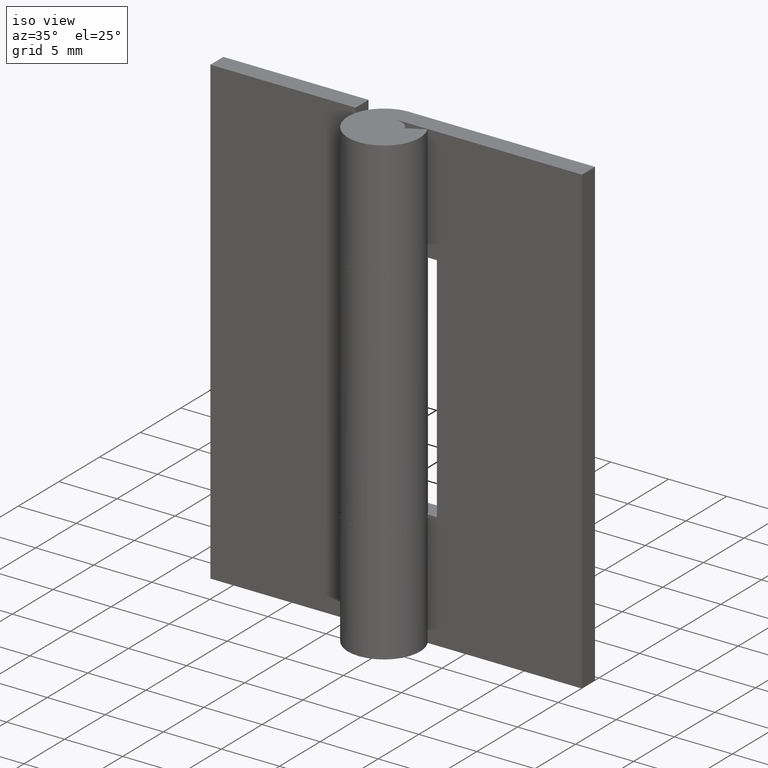
[diagram: clean part render]
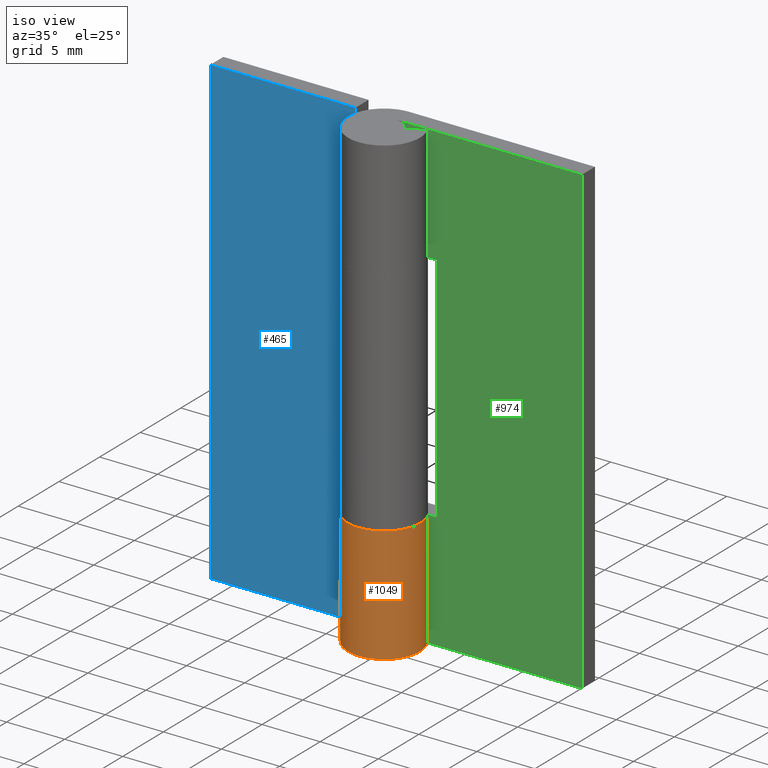
[diagram: same view with three faces highlighted in distinct colors, each labeled with its STEP entity id]
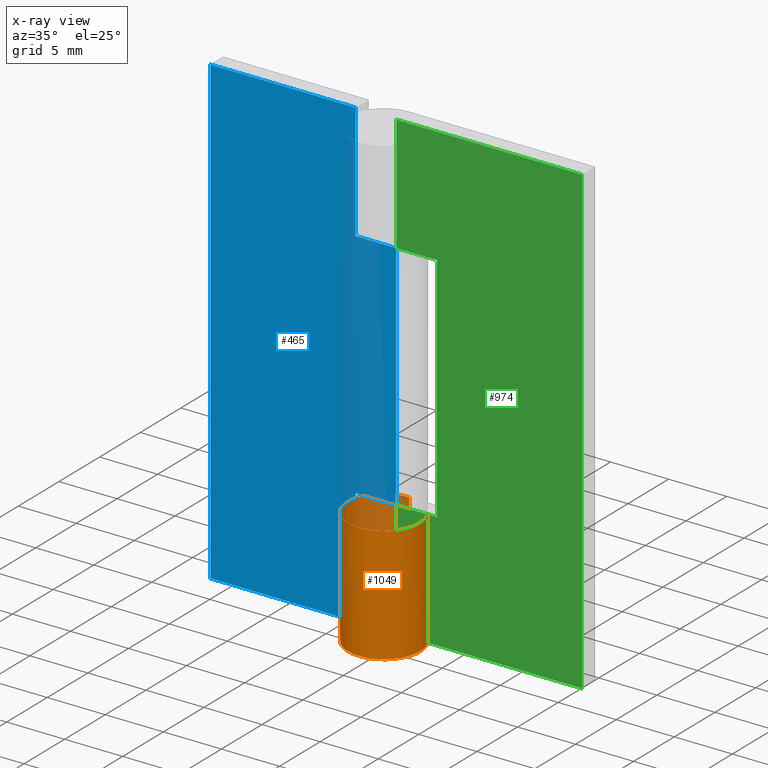
[diagram: x-ray of the same camera — body ghosted, the three highlighted faces saturated]
A machine part, iso view with three faces highlighted in distinct colors.
The next image is the same camera in x-ray (body ghosted, the three faces saturated) — at least one of them is partly hidden behind the body in this view.
Their STEP definitions:

[orange] entity #1049 — the highlighted face is a freeform B-spline surface patch.
#521=CARTESIAN_POINT('',(0.003521362805220,3.099998000000000,10.0));
#522=VERTEX_POINT('',#521);
#528=CARTESIAN_POINT('',(0.0,3.099998000000000,10.0));
#529=VERTEX_POINT('',#528);
#530=CARTESIAN_POINT('',(0.003521362805220,3.099998000000000,10.0));
#531=CARTESIAN_POINT('',(0.0,3.099998000000000,10.0));
#532=QUASI_UNIFORM_CURVE('',1,(#530,#531),.UNSPECIFIED.,.F.,.U.);
#533=EDGE_CURVE('',#522,#529,#532,.T.);
#535=CARTESIAN_POINT('',(2.739981751764055,1.450000000000000,10.0));
#536=VERTEX_POINT('',#535);
#537=CARTESIAN_POINT('',(0.0,3.099998000000000,10.0));
#538=CARTESIAN_POINT('',(-2.356097610603767,3.099996737895509,10.0));
#539=CARTESIAN_POINT('',(-2.986848545660751,0.829898189834369,10.0));
#540=CARTESIAN_POINT('',(-3.617599480717736,-1.440200358226769,10.0));
#541=CARTESIAN_POINT('',(-1.599218559171949,-2.655655344977896,10.0));
#542=CARTESIAN_POINT('',(0.419162362373836,-3.871110331729021,10.0));
#543=CARTESIAN_POINT('',(2.130594885355308,-2.251790737784720,10.0));
#544=CARTESIAN_POINT('',(3.842027408336783,-0.632471143840417,10.0));
#545=CARTESIAN_POINT('',(2.739981751764055,1.450000000000000,10.0));
#553=(BOUNDED_CURVE()B_SPLINE_CURVE(2,(#537,#538,#539,#540,#541,#542,#543,#544,#545),.UNSPECIFIED.,.F.,.U.)B_SPLINE_CURVE_WITH_KNOTS((3,2,2,2,3),(0.0,0.250000000000000,0.500000000000000,0.750000000000000,1.0),.UNSPECIFIED.)CURVE()GEOMETRIC_REPRESENTATION_ITEM()RATIONAL_B_SPLINE_CURVE((1.0,0.796150117301085,1.0,0.796150117301085,1.0,0.796150117301085,1.0,0.796150117301085,1.0))REPRESENTATION_ITEM(''));
#554=EDGE_CURVE('',#529,#536,#553,.T.);
#725=CARTESIAN_POINT('',(2.739981751764055,1.450000000000000,0.0));
#726=VERTEX_POINT('',#725);
#732=CARTESIAN_POINT('',(0.003521362805220,3.099998000000000,0.0));
#733=VERTEX_POINT('',#732);
#734=CARTESIAN_POINT('',(2.739981751764052,1.450000000000000,0.0));
#735=CARTESIAN_POINT('',(3.842352259281344,-0.633086258124317,0.0));
#736=CARTESIAN_POINT('',(2.129955333572984,-2.252396562993293,0.0));
#737=CARTESIAN_POINT('',(0.417558407864625,-3.871706867862267,0.0));
#738=CARTESIAN_POINT('',(-1.600726611546711,-2.654745621540072,0.0));
#739=CARTESIAN_POINT('',(-3.619011630958046,-1.437784375217877,0.0));
#740=CARTESIAN_POINT('',(-2.986140433580759,0.832445380150624,0.0));
#741=CARTESIAN_POINT('',(-2.353269236203469,3.102675135519129,0.0));
#742=CARTESIAN_POINT('',(0.003521362805217,3.099997999999999,0.0));
#750=(BOUNDED_CURVE()B_SPLINE_CURVE(2,(#734,#735,#736,#737,#738,#739,#740,#741,#742),.UNSPECIFIED.,.F.,.U.)B_SPLINE_CURVE_WITH_KNOTS((3,2,2,2,3),(0.0,0.250000000000000,0.500000000000000,0.750000000000000,1.0),.UNSPECIFIED.)CURVE()GEOMETRIC_REPRESENTATION_ITEM()RATIONAL_B_SPLINE_CURVE((1.0,0.796064190964140,1.0,0.796064190964140,1.0,0.796064190964140,1.0,0.796064190964140,1.0))REPRESENTATION_ITEM(''));
#751=EDGE_CURVE('',#726,#733,#750,.T.);
#864=CARTESIAN_POINT('',(2.739981751764055,1.450000000000000,10.0));
#865=CARTESIAN_POINT('',(2.739981751764055,1.450000000000000,0.0));
#866=QUASI_UNIFORM_CURVE('',1,(#864,#865),.UNSPECIFIED.,.F.,.U.);
#867=EDGE_CURVE('',#536,#726,#866,.T.);
#926=CARTESIAN_POINT('',(0.003521362805220,3.099998000000000,10.0));
#927=CARTESIAN_POINT('',(0.003521362805220,3.099998000000000,0.0));
#928=QUASI_UNIFORM_CURVE('',1,(#926,#927),.UNSPECIFIED.,.F.,.U.);
#929=EDGE_CURVE('',#522,#733,#928,.T.);
#1020=CARTESIAN_POINT('',(0.138738024841862,3.096893889119059,10.250000000000000));
#1021=CARTESIAN_POINT('',(0.138738024841862,3.096893889119059,-0.256250000000001));
#1022=CARTESIAN_POINT('',(-3.618094674042177,3.265196571408492,10.250000000000002));
#1023=CARTESIAN_POINT('',(-3.618094674042177,3.265196571408492,-0.256250000000001));
#1024=CARTESIAN_POINT('',(-3.066467688952826,-0.454726195207957,10.250000000000000));
#1025=CARTESIAN_POINT('',(-3.066467688952826,-0.454726195207957,-0.256250000000001));
#1026=CARTESIAN_POINT('',(-2.514840703863475,-4.174648961824406,10.250000000000002));
#1027=CARTESIAN_POINT('',(-2.514840703863475,-4.174648961824406,-0.256250000000001));
#1028=CARTESIAN_POINT('',(1.031481213325582,-2.923362192161001,10.250000000000000));
#1029=CARTESIAN_POINT('',(1.031481213325582,-2.923362192161001,-0.256250000000001));
#1030=CARTESIAN_POINT('',(4.577803130514639,-1.672075422497595,10.250000000000002));
#1031=CARTESIAN_POINT('',(4.577803130514639,-1.672075422497595,-0.256250000000001));
#1032=CARTESIAN_POINT('',(2.672835900823960,1.570333801223983,10.250000000000000));
#1033=CARTESIAN_POINT('',(2.672835900823960,1.570333801223983,-0.256250000000001));
#1041=(BOUNDED_SURFACE()B_SPLINE_SURFACE(1,2,((#1020,#1022,#1024,#1026,#1028,#1030,#1032),(#1021,#1023,#1025,#1027,#1029,#1031,#1033)),.UNSPECIFIED.,.F.,.F.,.U.)B_SPLINE_SURFACE_WITH_KNOTS((2,2),(3,2,2,3),(0.0,10.506250000000000),(0.0,5.848219672763136,11.696439345526271,17.544659018289408),.UNSPECIFIED.)GEOMETRIC_REPRESENTATION_ITEM()RATIONAL_B_SPLINE_SURFACE(((1.0,0.636078220277764,1.0,0.636078220277764,1.0,0.636078220277764,1.0),(1.0,0.636078220277764,1.0,0.636078220277764,1.0,0.636078220277764,1.0)))REPRESENTATION_ITEM('')SURFACE());
#1042=ORIENTED_EDGE('',*,*,#533,.F.);
#1043=ORIENTED_EDGE('',*,*,#929,.T.);
#1044=ORIENTED_EDGE('',*,*,#751,.F.);
#1045=ORIENTED_EDGE('',*,*,#867,.F.);
#1046=ORIENTED_EDGE('',*,*,#554,.F.);
#1047=EDGE_LOOP('',(#1042,#1043,#1044,#1045,#1046));
#1048=FACE_OUTER_BOUND('',#1047,.T.);
#1049=ADVANCED_FACE('',(#1048),#1041,.T.);

[blue] entity #465 — the highlighted face is a freeform B-spline surface patch.
#49=CARTESIAN_POINT('',(-3.500000000000100,1.499999999999946,10.0));
#50=VERTEX_POINT('',#49);
#51=CARTESIAN_POINT('',(-3.500000000000100,1.500000000000000,0.0));
#52=VERTEX_POINT('',#51);
#53=CARTESIAN_POINT('',(-3.500000000000100,1.499999999999946,10.0));
#54=CARTESIAN_POINT('',(-3.500000000000100,1.500000000000000,0.0));
#55=QUASI_UNIFORM_CURVE('',1,(#53,#54),.UNSPECIFIED.,.F.,.U.);
#56=EDGE_CURVE('',#50,#52,#55,.T.);
#85=CARTESIAN_POINT('',(-2.755364E-016,1.500000000000000,10.0));
#86=VERTEX_POINT('',#85);
#87=CARTESIAN_POINT('',(-2.755364E-016,1.500000000000000,10.0));
#88=CARTESIAN_POINT('',(-3.500000000000100,1.499999999999946,10.0));
#89=QUASI_UNIFORM_CURVE('',1,(#87,#88),.UNSPECIFIED.,.F.,.U.);
#90=EDGE_CURVE('',#86,#50,#89,.T.);
#162=CARTESIAN_POINT('',(-3.500000000000100,1.499999999999946,40.0));
#163=VERTEX_POINT('',#162);
#164=CARTESIAN_POINT('',(-3.500000000000100,1.499999999999946,30.0));
#165=VERTEX_POINT('',#164);
#166=CARTESIAN_POINT('',(-3.500000000000100,1.499999999999946,40.0));
#167=CARTESIAN_POINT('',(-3.500000000000100,1.499999999999946,30.0));
#168=QUASI_UNIFORM_CURVE('',1,(#166,#167),.UNSPECIFIED.,.F.,.U.);
#169=EDGE_CURVE('',#163,#165,#168,.T.);
#198=CARTESIAN_POINT('',(-2.755364E-016,1.500000000000000,30.0));
#199=VERTEX_POINT('',#198);
#200=CARTESIAN_POINT('',(-3.500000000000100,1.499999999999946,30.0));
#201=CARTESIAN_POINT('',(-2.755364E-016,1.500000000000000,30.0));
#202=QUASI_UNIFORM_CURVE('',1,(#200,#201),.UNSPECIFIED.,.F.,.U.);
#203=EDGE_CURVE('',#165,#199,#202,.T.);
#277=CARTESIAN_POINT('',(-16.0,1.500000000000000,0.0));
#278=VERTEX_POINT('',#277);
#284=CARTESIAN_POINT('',(-16.0,1.500000000000000,40.0));
#285=VERTEX_POINT('',#284);
#286=CARTESIAN_POINT('',(-16.0,1.500000000000000,40.0));
#287=CARTESIAN_POINT('',(-16.0,1.500000000000000,0.0));
#288=QUASI_UNIFORM_CURVE('',1,(#286,#287),.UNSPECIFIED.,.F.,.U.);
#289=EDGE_CURVE('',#285,#278,#288,.T.);
#318=CARTESIAN_POINT('',(-16.0,1.500000000000000,40.0));
#319=CARTESIAN_POINT('',(-3.500000000000100,1.499999999999946,40.0));
#320=QUASI_UNIFORM_CURVE('',1,(#318,#319),.UNSPECIFIED.,.F.,.U.);
#321=EDGE_CURVE('',#285,#163,#320,.T.);
#337=CARTESIAN_POINT('',(-16.0,1.500000000000000,0.0));
#338=CARTESIAN_POINT('',(-3.500000000000100,1.500000000000000,0.0));
#339=QUASI_UNIFORM_CURVE('',1,(#337,#338),.UNSPECIFIED.,.F.,.U.);
#340=EDGE_CURVE('',#278,#52,#339,.T.);
#442=CARTESIAN_POINT('',(-2.755364E-016,1.500000000000000,30.0));
#443=CARTESIAN_POINT('',(-2.755364E-016,1.500000000000000,10.0));
#444=QUASI_UNIFORM_CURVE('',1,(#442,#443),.UNSPECIFIED.,.F.,.U.);
#445=EDGE_CURVE('',#199,#86,#444,.T.);
#450=CARTESIAN_POINT('',(-16.799199968988891,1.500000000000000,-1.997999922472239));
#451=CARTESIAN_POINT('',(-16.799199968988891,1.500000000000000,41.998000995355838));
#452=CARTESIAN_POINT('',(0.799200398142338,1.500000000000000,-1.997999922472239));
#453=CARTESIAN_POINT('',(0.799200398142338,1.500000000000000,41.998000995355838));
#454=B_SPLINE_SURFACE_WITH_KNOTS('',1,1,((#450,#452),(#451,#453)),.UNSPECIFIED.,.F.,.F.,.U.,(2,2),(2,2),(0.0,43.996000917828077),(0.0,17.598400367131230),.UNSPECIFIED.);
#455=ORIENTED_EDGE('',*,*,#56,.F.);
#456=ORIENTED_EDGE('',*,*,#90,.F.);
#457=ORIENTED_EDGE('',*,*,#445,.F.);
#458=ORIENTED_EDGE('',*,*,#203,.F.);
#459=ORIENTED_EDGE('',*,*,#169,.F.);
#460=ORIENTED_EDGE('',*,*,#321,.F.);
#461=ORIENTED_EDGE('',*,*,#289,.T.);
#462=ORIENTED_EDGE('',*,*,#340,.T.);
#463=EDGE_LOOP('',(#455,#456,#457,#458,#459,#460,#461,#462));
#464=FACE_OUTER_BOUND('',#463,.T.);
#465=ADVANCED_FACE('',(#464),#454,.F.);

[green] entity #974 — the highlighted face is a freeform B-spline surface patch.
#512=CARTESIAN_POINT('',(3.499999999999901,1.499999999999946,10.0));
#513=VERTEX_POINT('',#512);
#563=CARTESIAN_POINT('',(0.0,1.500000000000000,10.0));
#564=VERTEX_POINT('',#563);
#584=CARTESIAN_POINT('',(3.499999999999901,1.499999999999946,10.0));
#585=CARTESIAN_POINT('',(0.0,1.500000000000000,10.0));
#586=QUASI_UNIFORM_CURVE('',1,(#584,#585),.UNSPECIFIED.,.F.,.U.);
#587=EDGE_CURVE('',#513,#564,#586,.T.);
#599=CARTESIAN_POINT('',(0.0,1.500000000000000,30.0));
#600=VERTEX_POINT('',#599);
#662=CARTESIAN_POINT('',(3.499999999999901,1.499999999999946,30.0));
#663=VERTEX_POINT('',#662);
#669=CARTESIAN_POINT('',(0.0,1.500000000000000,30.0));
#670=CARTESIAN_POINT('',(3.499999999999901,1.499999999999946,30.0));
#671=QUASI_UNIFORM_CURVE('',1,(#669,#670),.UNSPECIFIED.,.F.,.U.);
#672=EDGE_CURVE('',#600,#663,#671,.T.);
#689=CARTESIAN_POINT('',(3.499999999999901,1.499999999999946,30.0));
#690=CARTESIAN_POINT('',(3.499999999999901,1.499999999999946,10.0));
#691=QUASI_UNIFORM_CURVE('',1,(#689,#690),.UNSPECIFIED.,.F.,.U.);
#692=EDGE_CURVE('',#663,#513,#691,.T.);
#704=CARTESIAN_POINT('',(0.0,1.500000000000000,0.0));
#705=VERTEX_POINT('',#704);
#760=CARTESIAN_POINT('',(16.0,1.500000000000000,0.0));
#761=VERTEX_POINT('',#760);
#767=CARTESIAN_POINT('',(0.0,1.500000000000000,0.0));
#768=CARTESIAN_POINT('',(16.0,1.500000000000000,0.0));
#769=QUASI_UNIFORM_CURVE('',1,(#767,#768),.UNSPECIFIED.,.F.,.U.);
#770=EDGE_CURVE('',#705,#761,#769,.T.);
#782=CARTESIAN_POINT('',(0.0,1.500000000000000,40.0));
#783=VERTEX_POINT('',#782);
#803=CARTESIAN_POINT('',(16.0,1.500000000000000,40.0));
#804=VERTEX_POINT('',#803);
#805=CARTESIAN_POINT('',(0.0,1.500000000000000,40.0));
#806=CARTESIAN_POINT('',(16.0,1.500000000000000,40.0));
#807=QUASI_UNIFORM_CURVE('',1,(#805,#806),.UNSPECIFIED.,.F.,.U.);
#808=EDGE_CURVE('',#783,#804,#807,.T.);
#943=CARTESIAN_POINT('',(16.0,1.500000000000000,40.0));
#944=CARTESIAN_POINT('',(16.0,1.500000000000000,0.0));
#945=QUASI_UNIFORM_CURVE('',1,(#943,#944),.UNSPECIFIED.,.F.,.U.);
#946=EDGE_CURVE('',#804,#761,#945,.T.);
#951=CARTESIAN_POINT('',(-0.799199968988895,1.500000000000000,-1.997999922472239));
#952=CARTESIAN_POINT('',(-0.799199968988895,1.500000000000000,41.998000995355838));
#953=CARTESIAN_POINT('',(16.799200398142339,1.500000000000000,-1.997999922472239));
#954=CARTESIAN_POINT('',(16.799200398142339,1.500000000000000,41.998000995355838));
#955=B_SPLINE_SURFACE_WITH_KNOTS('',1,1,((#951,#953),(#952,#954)),.UNSPECIFIED.,.F.,.F.,.U.,(2,2),(2,2),(0.0,43.996000917828077),(0.0,17.598400367131230),.UNSPECIFIED.);
#956=CARTESIAN_POINT('',(0.0,1.500000000000000,40.0));
#957=CARTESIAN_POINT('',(0.0,1.500000000000000,30.0));
#958=QUASI_UNIFORM_CURVE('',1,(#956,#957),.UNSPECIFIED.,.F.,.U.);
#959=EDGE_CURVE('',#783,#600,#958,.T.);
#960=ORIENTED_EDGE('',*,*,#959,.T.);
#961=ORIENTED_EDGE('',*,*,#672,.T.);
#962=ORIENTED_EDGE('',*,*,#692,.T.);
#963=ORIENTED_EDGE('',*,*,#587,.T.);
#964=CARTESIAN_POINT('',(0.0,1.500000000000000,10.0));
#965=CARTESIAN_POINT('',(0.0,1.500000000000000,0.0));
#966=QUASI_UNIFORM_CURVE('',1,(#964,#965),.UNSPECIFIED.,.F.,.U.);
#967=EDGE_CURVE('',#564,#705,#966,.T.);
#968=ORIENTED_EDGE('',*,*,#967,.T.);
#969=ORIENTED_EDGE('',*,*,#770,.T.);
#970=ORIENTED_EDGE('',*,*,#946,.F.);
#971=ORIENTED_EDGE('',*,*,#808,.F.);
#972=EDGE_LOOP('',(#960,#961,#962,#963,#968,#969,#970,#971));
#973=FACE_OUTER_BOUND('',#972,.T.);
#974=ADVANCED_FACE('',(#973),#955,.F.);